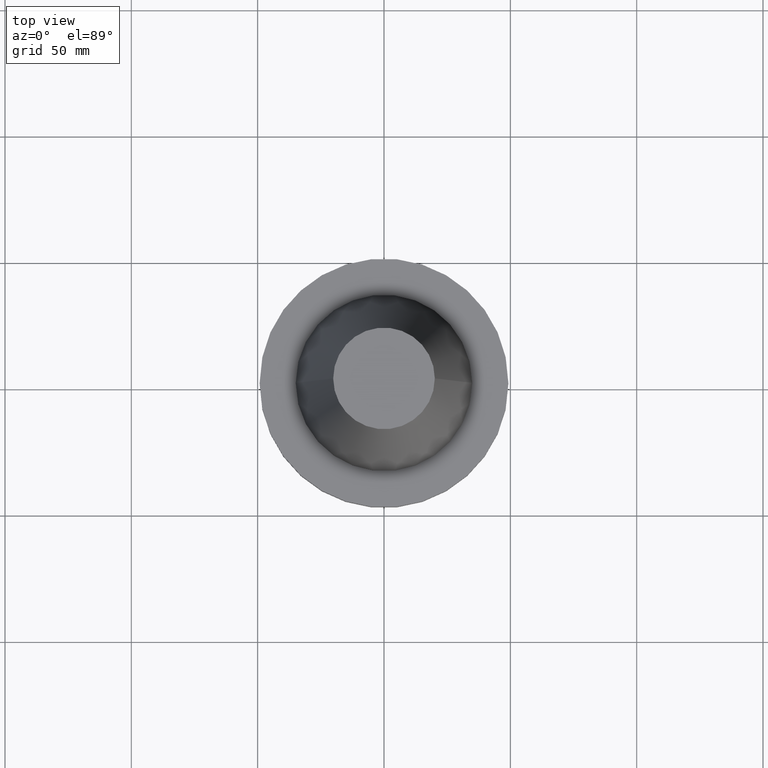
[diagram: clean part render]
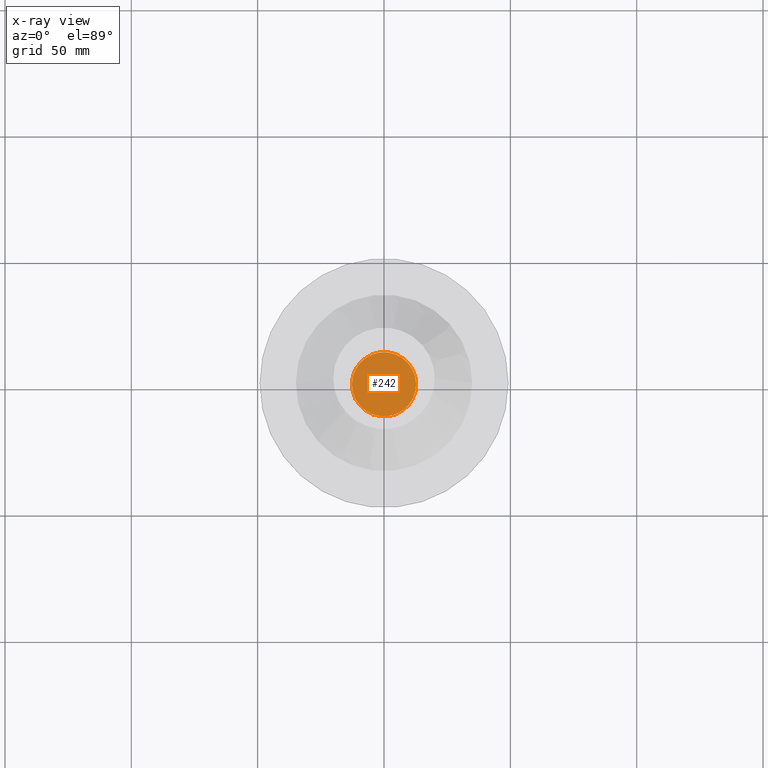
[diagram: x-ray — body ghosted, one internal face saturated and labeled with its STEP entity id]
A machine part, top view, then the same camera in x-ray: the body is ghosted and one INTERNAL B-rep face — a face not visible from any outside direction — is saturated and labeled: STEP entity #242.
In plain terms, the highlighted planar face has unit normal (0, -0, 1).
Its self-contained STEP definition (entity closure, byte-faithful):
#5 = AXIS2_PLACEMENT_3D ( 'NONE', #263, #725, #133 ) ;
#16 = DIRECTION ( 'NONE',  ( 1.000000000000000000, 0.000000000000000000, 0.000000000000000000 ) ) ;
#46 = VERTEX_POINT ( 'NONE', #124 ) ;
#86 = CARTESIAN_POINT ( 'NONE',  ( 0.000000000000000000, 0.000000000000000000, -35.04999999999999716 ) ) ;
#123 = AXIS2_PLACEMENT_3D ( 'NONE', #267, #530, #791 ) ;
#124 = CARTESIAN_POINT ( 'NONE',  ( -12.69999999999999574, 1.555301434917138038E-15, -35.04999999999999716 ) ) ;
#133 = DIRECTION ( 'NONE',  ( 1.000000000000000000, 0.000000000000000000, 0.000000000000000000 ) ) ;
#138 = EDGE_CURVE ( 'NONE', #46, #677, #423, .T. ) ;
#161 = DIRECTION ( 'NONE',  ( -0.000000000000000000, -0.000000000000000000, 1.000000000000000000 ) ) ;
#242 = ADVANCED_FACE ( 'NONE', ( #467 ), #844, .F. ) ;
#254 = EDGE_CURVE ( 'NONE', #677, #46, #496, .T. ) ;
#263 = CARTESIAN_POINT ( 'NONE',  ( 0.000000000000000000, 34.92499999999999716, -35.04999999999999716 ) ) ;
#267 = CARTESIAN_POINT ( 'NONE',  ( 0.000000000000000000, 0.000000000000000000, -35.04999999999999716 ) ) ;
#367 = ORIENTED_EDGE ( 'NONE', *, *, #138, .F. ) ;
#378 = ORIENTED_EDGE ( 'NONE', *, *, #254, .F. ) ;
#423 = CIRCLE ( 'NONE', #438, 12.69999999999999574 ) ;
#438 = AXIS2_PLACEMENT_3D ( 'NONE', #86, #161, #16 ) ;
#467 = FACE_OUTER_BOUND ( 'NONE', #516, .T. ) ;
#496 = CIRCLE ( 'NONE', #123, 12.69999999999999574 ) ;
#516 = EDGE_LOOP ( 'NONE', ( #378, #367 ) ) ;
#530 = DIRECTION ( 'NONE',  ( -0.000000000000000000, -0.000000000000000000, 1.000000000000000000 ) ) ;
#677 = VERTEX_POINT ( 'NONE', #795 ) ;
#725 = DIRECTION ( 'NONE',  ( 0.000000000000000000, -0.000000000000000000, 1.000000000000000000 ) ) ;
#791 = DIRECTION ( 'NONE',  ( 1.000000000000000000, 0.000000000000000000, 0.000000000000000000 ) ) ;
#795 = CARTESIAN_POINT ( 'NONE',  ( 12.69999999999999574, 0.000000000000000000, -35.04999999999999716 ) ) ;
#844 = PLANE ( 'NONE',  #5 ) ;